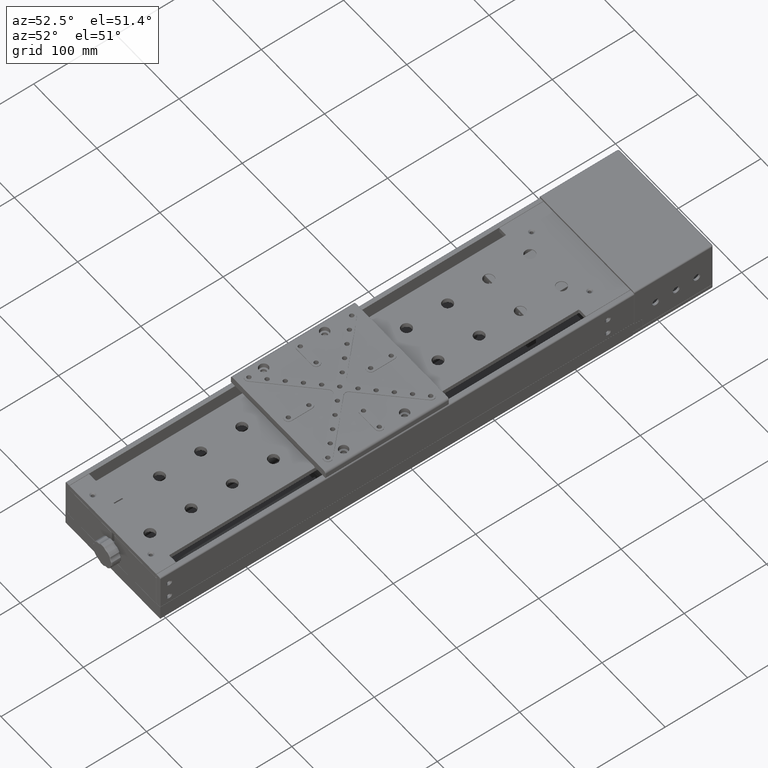
[diagram: clean part render]
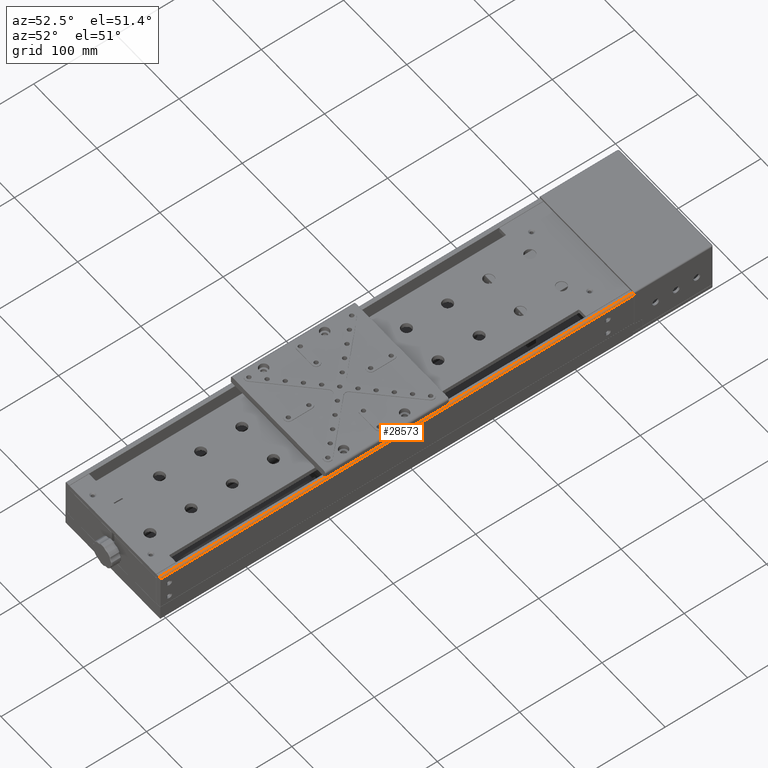
[diagram: same view with one face highlighted and labeled with its STEP entity id]
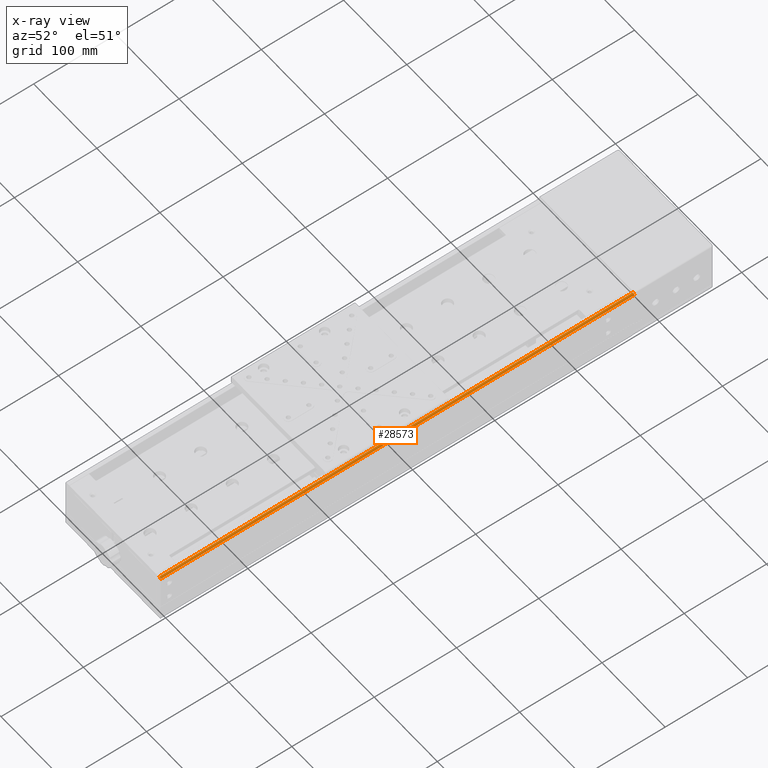
[diagram: x-ray of the same camera — body ghosted, the highlighted face saturated]
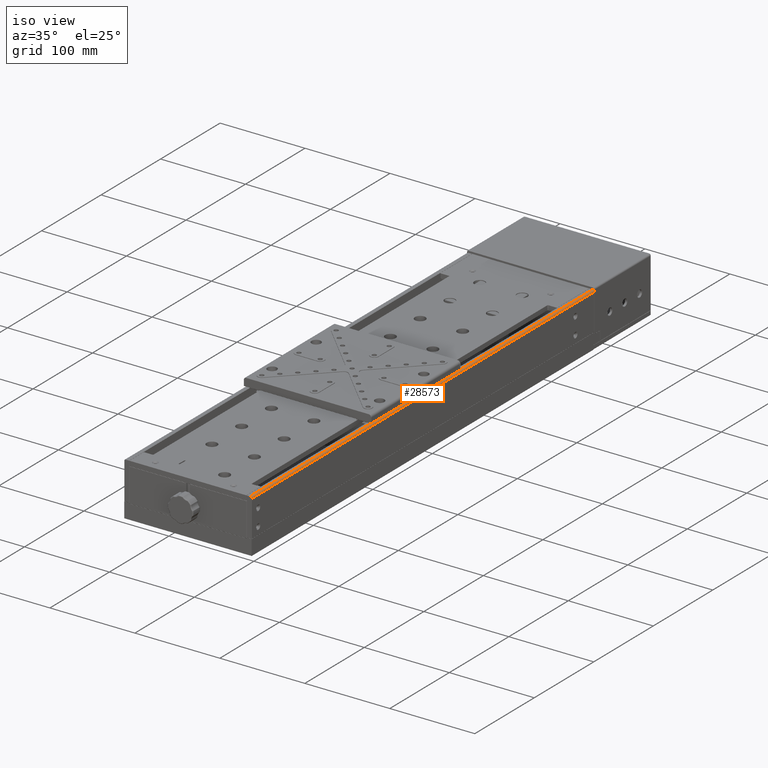
[diagram: same view with one face highlighted and labeled with its STEP entity id]
A machine part, auxiliary view. The second image highlights one B-rep face of the part: STEP entity #28573.
The next image is the same camera in x-ray: the body ghosted, the highlighted face saturated — about 0% of this face is hidden behind the body in this view.
A second angle (iso view) of the same face is appended — the face is thin or edge-on in the first view.
In plain terms, the highlighted cylindrical surface (edge-blend (fillet) strip) has radius 2 mm, axis along (0, 1, -0).
Its self-contained STEP definition (entity closure, byte-faithful):
#2838 = CIRCLE ( 'NONE', #33114, 2.000000000000000000 ) ;
#3365 = CARTESIAN_POINT ( 'NONE',  ( 2.414567697118880307, 466.0311902418279715, 41.04665025355549801 ) ) ;
#4318 = CARTESIAN_POINT ( 'NONE',  ( 2.414567697119070377, -109.7688097581719973, 41.04665025355554775 ) ) ;
#4385 = DIRECTION ( 'NONE',  ( -1.000000000000000000, 0.000000000000000000, 0.000000000000000000 ) ) ;
#16108 = LINE ( 'NONE', #3365, #24354 ) ;
#17489 = DIRECTION ( 'NONE',  ( 1.000000000000000000, 0.000000000000000000, -1.040834085586084257E-14 ) ) ;
#17933 = CARTESIAN_POINT ( 'NONE',  ( 2.414567697119070377, -109.9688097581720001, 39.04665025355554775 ) ) ;
#21059 = EDGE_CURVE ( 'NONE', #39473, #60279, #56773, .T. ) ;
#23321 = CYLINDRICAL_SURFACE ( 'NONE', #61400, 2.000000000000000000 ) ;
#24354 = VECTOR ( 'NONE', #59325, 1000.000000000000000 ) ;
#27038 = CARTESIAN_POINT ( 'NONE',  ( 4.414567697119069933, -109.9688097581720001, 39.04665025355554775 ) ) ;
#28573 = ADVANCED_FACE ( 'NONE', ( #50030 ), #23321, .T. ) ;
#31115 = DIRECTION ( 'NONE',  ( 0.000000000000000000, 1.000000000000000000, -1.038665681241111892E-16 ) ) ;
#33114 = AXIS2_PLACEMENT_3D ( 'NONE', #71141, #34102, #64954 ) ;
#34102 = DIRECTION ( 'NONE',  ( 0.000000000000000000, 1.000000000000000000, -1.038665681241111892E-16 ) ) ;
#38037 = ORIENTED_EDGE ( 'NONE', *, *, #21059, .F. ) ;
#38405 = AXIS2_PLACEMENT_3D ( 'NONE', #59894, #48765, #17489 ) ;
#39130 = ORIENTED_EDGE ( 'NONE', *, *, #77657, .T. ) ;
#39473 = VERTEX_POINT ( 'NONE', #42607 ) ;
#42352 = VECTOR ( 'NONE', #52094, 1000.000000000000000 ) ;
#42607 = CARTESIAN_POINT ( 'NONE',  ( 2.414567697118880307, 466.0311902418279715, 41.04665025355549801 ) ) ;
#44407 = EDGE_LOOP ( 'NONE', ( #50755, #39130, #46210, #38037 ) ) ;
#45259 = EDGE_CURVE ( 'NONE', #65883, #39473, #16108, .T. ) ;
#46210 = ORIENTED_EDGE ( 'NONE', *, *, #78092, .F. ) ;
#46669 = CARTESIAN_POINT ( 'NONE',  ( 4.414567697118879863, 466.0311902418279715, 39.04665025355549801 ) ) ;
#48765 = DIRECTION ( 'NONE',  ( -1.081078644564276057E-30, 1.000000000000000000, -1.038665681241147884E-16 ) ) ;
#50030 = FACE_OUTER_BOUND ( 'NONE', #44407, .T. ) ;
#50755 = ORIENTED_EDGE ( 'NONE', *, *, #45259, .F. ) ;
#52094 = DIRECTION ( 'NONE',  ( 3.330304365079189903E-16, -1.000000000000000000, 1.038665681241111892E-16 ) ) ;
#56773 = CIRCLE ( 'NONE', #38405, 2.000000000000000000 ) ;
#59325 = DIRECTION ( 'NONE',  ( -3.330304365079189903E-16, 1.000000000000000000, -1.038665681241111892E-16 ) ) ;
#59894 = CARTESIAN_POINT ( 'NONE',  ( 2.414567697118874978, 466.0311902418279715, 39.04665025355549801 ) ) ;
#60279 = VERTEX_POINT ( 'NONE', #46669 ) ;
#61400 = AXIS2_PLACEMENT_3D ( 'NONE', #17933, #31115, #4385 ) ;
#64954 = DIRECTION ( 'NONE',  ( -1.000000000000000000, 0.000000000000000000, 0.000000000000000000 ) ) ;
#65883 = VERTEX_POINT ( 'NONE', #4318 ) ;
#66064 = LINE ( 'NONE', #27038, #42352 ) ;
#66331 = VERTEX_POINT ( 'NONE', #80349 ) ;
#71141 = CARTESIAN_POINT ( 'NONE',  ( 2.414567697119070377, -109.7688097581719973, 39.04665025355554775 ) ) ;
#77657 = EDGE_CURVE ( 'NONE', #65883, #66331, #2838, .T. ) ;
#78092 = EDGE_CURVE ( 'NONE', #60279, #66331, #66064, .T. ) ;
#80349 = CARTESIAN_POINT ( 'NONE',  ( 4.414567697119069933, -109.7688097581719973, 39.04665025355554775 ) ) ;